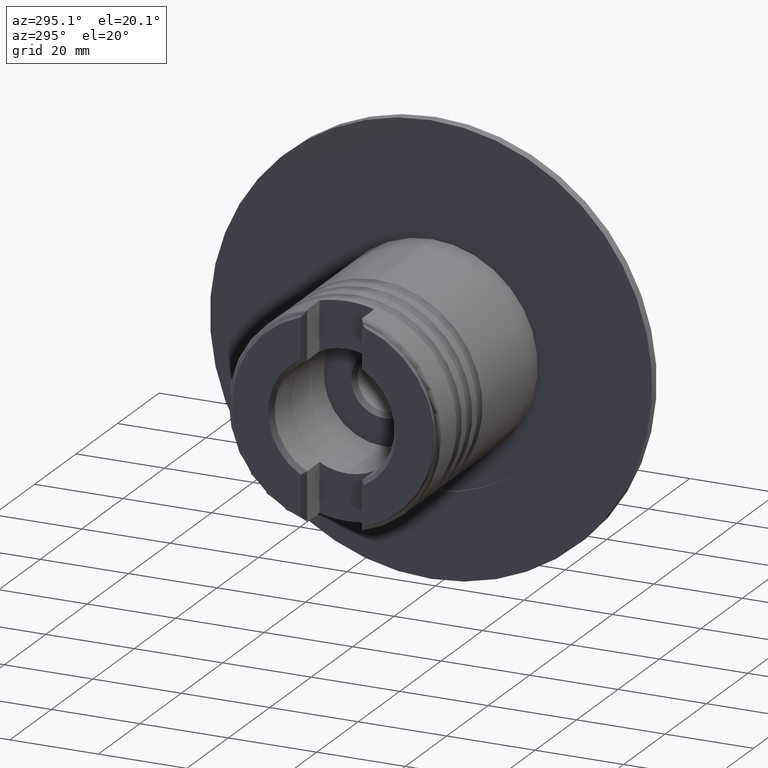
[diagram: clean part render]
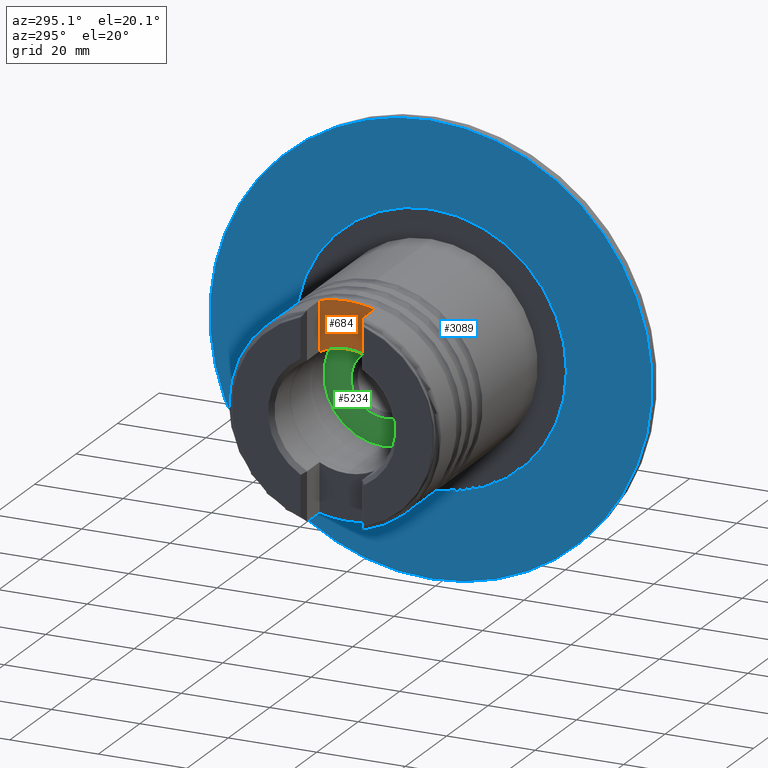
[diagram: same view with three faces highlighted in distinct colors, each labeled with its STEP entity id]
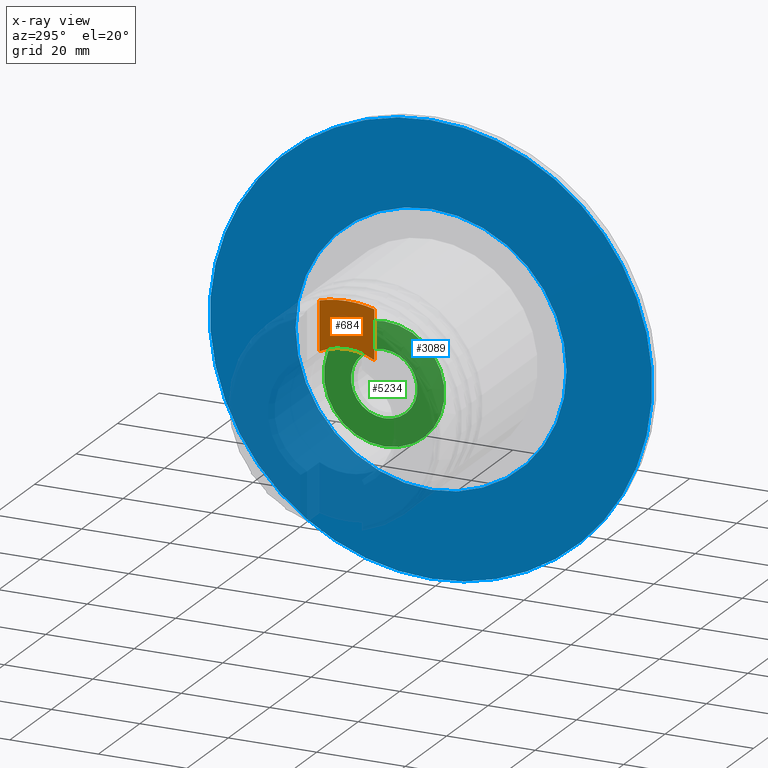
[diagram: x-ray of the same camera — body ghosted, the three highlighted faces saturated]
A machine part, auxiliary view with three faces highlighted in distinct colors.
The next image is the same camera in x-ray (body ghosted, the three faces saturated) — at least one of them is partly hidden behind the body in this view.
Their STEP definitions:

[orange] entity #684 — the highlighted planar face has unit normal (1, 0, 0).
#61 = EDGE_CURVE ( 'NONE', #4363, #4938, #816, .T. ) ;
#162 = FACE_OUTER_BOUND ( 'NONE', #5451, .T. ) ;
#166 = VERTEX_POINT ( 'NONE', #487 ) ;
#243 = ORIENTED_EDGE ( 'NONE', *, *, #2072, .T. ) ;
#487 = CARTESIAN_POINT ( 'NONE',  ( -42.74972663000000495, -6.200000000000005507, 23.18534019590826745 ) ) ;
#574 = AXIS2_PLACEMENT_3D ( 'NONE', #2109, #1243, #3385 ) ;
#640 = DIRECTION ( 'NONE',  ( -1.000000000000000000, 0.0000000000000000000, -0.0000000000000000000 ) ) ;
#684 = ADVANCED_FACE ( 'NONE', ( #162 ), #5165, .F. ) ;
#689 = CARTESIAN_POINT ( 'NONE',  ( -42.74972663000000495, 0.0000000000000000000, 0.0000000000000000000 ) ) ;
#816 = CIRCLE ( 'NONE', #1890, 23.99999999999999289 ) ;
#1243 = DIRECTION ( 'NONE',  ( -1.000000000000000000, 0.0000000000000000000, -0.0000000000000000000 ) ) ;
#1372 = VECTOR ( 'NONE', #3600, 1000.000000000000000 ) ;
#1413 = VECTOR ( 'NONE', #4611, 1000.000000000000000 ) ;
#1440 = CARTESIAN_POINT ( 'NONE',  ( -42.74972663000000495, 0.0000000000000000000, 0.0000000000000000000 ) ) ;
#1442 = EDGE_CURVE ( 'NONE', #3830, #166, #3348, .T. ) ;
#1507 = CIRCLE ( 'NONE', #574, 23.99999999999999289 ) ;
#1523 = CIRCLE ( 'NONE', #1752, 13.57499999999999396 ) ;
#1577 = ORIENTED_EDGE ( 'NONE', *, *, #4366, .F. ) ;
#1752 = AXIS2_PLACEMENT_3D ( 'NONE', #689, #640, #1974 ) ;
#1890 = AXIS2_PLACEMENT_3D ( 'NONE', #1440, #4481, #4010 ) ;
#1974 = DIRECTION ( 'NONE',  ( 0.0000000000000000000, 3.552713678800500535E-15, -1.000000000000000000 ) ) ;
#1987 = DIRECTION ( 'NONE',  ( 0.0000000000000000000, 0.0000000000000000000, -1.000000000000000000 ) ) ;
#2072 = EDGE_CURVE ( 'NONE', #166, #4363, #1507, .T. ) ;
#2109 = CARTESIAN_POINT ( 'NONE',  ( -42.74972663000000495, 0.0000000000000000000, 0.0000000000000000000 ) ) ;
#2132 = AXIS2_PLACEMENT_3D ( 'NONE', #2875, #3259, #4663 ) ;
#2582 = EDGE_CURVE ( 'NONE', #2776, #4197, #3396, .T. ) ;
#2657 = CARTESIAN_POINT ( 'NONE',  ( -42.74972663000000495, -6.200000000000005507, -25.00000000000000000 ) ) ;
#2776 = VERTEX_POINT ( 'NONE', #3945 ) ;
#2875 = CARTESIAN_POINT ( 'NONE',  ( -42.74972663000000495, 0.0000000000000000000, 0.0000000000000000000 ) ) ;
#3212 = EDGE_CURVE ( 'NONE', #4197, #4938, #5053, .T. ) ;
#3259 = DIRECTION ( 'NONE',  ( -1.000000000000000000, 0.0000000000000000000, -0.0000000000000000000 ) ) ;
#3327 = AXIS2_PLACEMENT_3D ( 'NONE', #4683, #3788, #1987 ) ;
#3348 = LINE ( 'NONE', #2657, #1372 ) ;
#3385 = DIRECTION ( 'NONE',  ( 0.0000000000000000000, 5.329070518200750605E-15, -1.000000000000000000 ) ) ;
#3396 = CIRCLE ( 'NONE', #2132, 13.57499999999999396 ) ;
#3505 = ORIENTED_EDGE ( 'NONE', *, *, #2582, .F. ) ;
#3523 = ORIENTED_EDGE ( 'NONE', *, *, #1442, .T. ) ;
#3558 = CARTESIAN_POINT ( 'NONE',  ( -42.74972663000000495, -6.199999999999987743, 12.07644918839970849 ) ) ;
#3600 = DIRECTION ( 'NONE',  ( -0.0000000000000000000, -0.0000000000000000000, 1.000000000000000000 ) ) ;
#3663 = CARTESIAN_POINT ( 'NONE',  ( -42.74972663000000495, 6.199999999999993960, -25.00000000000000000 ) ) ;
#3788 = DIRECTION ( 'NONE',  ( 1.000000000000000000, -0.0000000000000000000, 0.0000000000000000000 ) ) ;
#3830 = VERTEX_POINT ( 'NONE', #3558 ) ;
#3945 = CARTESIAN_POINT ( 'NONE',  ( -42.74972663000000495, 1.662458029842531096E-15, 13.57499999999999396 ) ) ;
#4010 = DIRECTION ( 'NONE',  ( 0.0000000000000000000, 0.0000000000000000000, -1.000000000000000000 ) ) ;
#4197 = VERTEX_POINT ( 'NONE', #4210 ) ;
#4210 = CARTESIAN_POINT ( 'NONE',  ( -42.74972663000000495, 6.199999999999992184, 12.07644918839970494 ) ) ;
#4227 = CARTESIAN_POINT ( 'NONE',  ( -42.74972663000000495, 2.939152317953647106E-15, 23.99999999999999289 ) ) ;
#4363 = VERTEX_POINT ( 'NONE', #4227 ) ;
#4366 = EDGE_CURVE ( 'NONE', #3830, #2776, #1523, .T. ) ;
#4481 = DIRECTION ( 'NONE',  ( -1.000000000000000000, 0.0000000000000000000, -0.0000000000000000000 ) ) ;
#4611 = DIRECTION ( 'NONE',  ( -0.0000000000000000000, -0.0000000000000000000, 1.000000000000000000 ) ) ;
#4663 = DIRECTION ( 'NONE',  ( 0.0000000000000000000, 0.0000000000000000000, -1.000000000000000000 ) ) ;
#4683 = CARTESIAN_POINT ( 'NONE',  ( -42.74972663000000495, -6.200000000000005507, -25.00000000000000000 ) ) ;
#4843 = CARTESIAN_POINT ( 'NONE',  ( -42.74972663000000495, 6.199999999999992184, 23.18534019590827100 ) ) ;
#4938 = VERTEX_POINT ( 'NONE', #4843 ) ;
#4976 = ORIENTED_EDGE ( 'NONE', *, *, #3212, .F. ) ;
#5053 = LINE ( 'NONE', #3663, #1413 ) ;
#5165 = PLANE ( 'NONE',  #3327 ) ;
#5451 = EDGE_LOOP ( 'NONE', ( #243, #5551, #4976, #3505, #1577, #3523 ) ) ;
#5551 = ORIENTED_EDGE ( 'NONE', *, *, #61, .T. ) ;

[blue] entity #3089 — the highlighted planar face has unit normal (1, 0, 0).
#126 = EDGE_CURVE ( 'NONE', #1288, #1400, #4490, .T. ) ;
#198 = FACE_OUTER_BOUND ( 'NONE', #3235, .T. ) ;
#332 = DIRECTION ( 'NONE',  ( 1.000000000000000000, -0.0000000000000000000, -0.0000000000000000000 ) ) ;
#822 = CARTESIAN_POINT ( 'NONE',  ( -1.949726629999988470, 3.748693814761792291E-15, 30.61040797535892821 ) ) ;
#845 = ORIENTED_EDGE ( 'NONE', *, *, #5147, .F. ) ;
#866 = CIRCLE ( 'NONE', #2943, 50.00000000000000000 ) ;
#891 = VERTEX_POINT ( 'NONE', #2191 ) ;
#1186 = VERTEX_POINT ( 'NONE', #2430 ) ;
#1288 = VERTEX_POINT ( 'NONE', #2144 ) ;
#1400 = VERTEX_POINT ( 'NONE', #822 ) ;
#1712 = PLANE ( 'NONE',  #3832 ) ;
#1813 = FACE_BOUND ( 'NONE', #4044, .T. ) ;
#2087 = DIRECTION ( 'NONE',  ( 1.000000000000000000, -0.0000000000000000000, -0.0000000000000000000 ) ) ;
#2144 = CARTESIAN_POINT ( 'NONE',  ( -1.949726629999988470, 0.0000000000000000000, -30.61040797535892821 ) ) ;
#2185 = DIRECTION ( 'NONE',  ( -0.0000000000000000000, 0.0000000000000000000, -1.000000000000000000 ) ) ;
#2191 = CARTESIAN_POINT ( 'NONE',  ( -1.949726629999988470, 0.0000000000000000000, -50.00000000000000000 ) ) ;
#2236 = ORIENTED_EDGE ( 'NONE', *, *, #5590, .F. ) ;
#2430 = CARTESIAN_POINT ( 'NONE',  ( -1.949726629999988470, 6.123233995736766085E-15, 50.00000000000000000 ) ) ;
#2445 = DIRECTION ( 'NONE',  ( 0.0000000000000000000, 0.0000000000000000000, -1.000000000000000000 ) ) ;
#2680 = AXIS2_PLACEMENT_3D ( 'NONE', #3965, #4723, #5631 ) ;
#2943 = AXIS2_PLACEMENT_3D ( 'NONE', #4741, #2087, #2445 ) ;
#2998 = DIRECTION ( 'NONE',  ( 0.0000000000000000000, 0.0000000000000000000, -1.000000000000000000 ) ) ;
#3063 = EDGE_CURVE ( 'NONE', #1400, #1288, #5699, .T. ) ;
#3089 = ADVANCED_FACE ( 'NONE', ( #198, #1813 ), #1712, .F. ) ;
#3167 = CARTESIAN_POINT ( 'NONE',  ( -1.949726629999988470, 0.0000000000000000000, 0.0000000000000000000 ) ) ;
#3235 = EDGE_LOOP ( 'NONE', ( #845, #2236 ) ) ;
#3424 = DIRECTION ( 'NONE',  ( 1.000000000000000000, 0.0000000000000000000, -0.0000000000000000000 ) ) ;
#3503 = AXIS2_PLACEMENT_3D ( 'NONE', #4334, #332, #2998 ) ;
#3555 = DIRECTION ( 'NONE',  ( 1.000000000000000000, -0.0000000000000000000, -0.0000000000000000000 ) ) ;
#3832 = AXIS2_PLACEMENT_3D ( 'NONE', #4842, #3424, #2185 ) ;
#3913 = CIRCLE ( 'NONE', #2680, 50.00000000000000000 ) ;
#3965 = CARTESIAN_POINT ( 'NONE',  ( -1.949726629999988470, 0.0000000000000000000, 0.0000000000000000000 ) ) ;
#4044 = EDGE_LOOP ( 'NONE', ( #5757, #5738 ) ) ;
#4334 = CARTESIAN_POINT ( 'NONE',  ( -1.949726629999988470, 0.0000000000000000000, 0.0000000000000000000 ) ) ;
#4490 = CIRCLE ( 'NONE', #5337, 30.61040797535892821 ) ;
#4505 = DIRECTION ( 'NONE',  ( 0.0000000000000000000, 0.0000000000000000000, -1.000000000000000000 ) ) ;
#4723 = DIRECTION ( 'NONE',  ( 1.000000000000000000, -0.0000000000000000000, -0.0000000000000000000 ) ) ;
#4741 = CARTESIAN_POINT ( 'NONE',  ( -1.949726629999988470, 0.0000000000000000000, 0.0000000000000000000 ) ) ;
#4842 = CARTESIAN_POINT ( 'NONE',  ( -1.949726629999988026, -50.00000000000000000, 0.0000000000000000000 ) ) ;
#5147 = EDGE_CURVE ( 'NONE', #891, #1186, #3913, .T. ) ;
#5337 = AXIS2_PLACEMENT_3D ( 'NONE', #3167, #3555, #4505 ) ;
#5590 = EDGE_CURVE ( 'NONE', #1186, #891, #866, .T. ) ;
#5631 = DIRECTION ( 'NONE',  ( 0.0000000000000000000, 0.0000000000000000000, -1.000000000000000000 ) ) ;
#5699 = CIRCLE ( 'NONE', #3503, 30.61040797535892821 ) ;
#5738 = ORIENTED_EDGE ( 'NONE', *, *, #3063, .T. ) ;
#5757 = ORIENTED_EDGE ( 'NONE', *, *, #126, .T. ) ;

[green] entity #5234 — the highlighted planar face has unit normal (1, 0, 0).
#133 = EDGE_CURVE ( 'NONE', #2284, #316, #1984, .T. ) ;
#316 = VERTEX_POINT ( 'NONE', #4417 ) ;
#350 = EDGE_CURVE ( 'NONE', #2525, #4442, #955, .T. ) ;
#381 = AXIS2_PLACEMENT_3D ( 'NONE', #3547, #4512, #2287 ) ;
#420 = CARTESIAN_POINT ( 'NONE',  ( -24.74972662999999784, 0.0000000000000000000, 0.0000000000000000000 ) ) ;
#502 = DIRECTION ( 'NONE',  ( 1.000000000000000000, 0.0000000000000000000, -0.0000000000000000000 ) ) ;
#593 = FACE_BOUND ( 'NONE', #2125, .T. ) ;
#851 = CIRCLE ( 'NONE', #4563, 13.64999999999999680 ) ;
#955 = CIRCLE ( 'NONE', #4214, 13.64999999999999680 ) ;
#1430 = DIRECTION ( 'NONE',  ( -0.0000000000000000000, 0.0000000000000000000, -1.000000000000000000 ) ) ;
#1765 = PLANE ( 'NONE',  #4580 ) ;
#1970 = FACE_OUTER_BOUND ( 'NONE', #3585, .T. ) ;
#1984 = CIRCLE ( 'NONE', #2957, 7.499999999999997335 ) ;
#1993 = CARTESIAN_POINT ( 'NONE',  ( -24.74972662999999784, 0.0000000000000000000, -13.64999999999999680 ) ) ;
#2125 = EDGE_LOOP ( 'NONE', ( #5745, #5174 ) ) ;
#2160 = DIRECTION ( 'NONE',  ( 1.000000000000000000, -0.0000000000000000000, -0.0000000000000000000 ) ) ;
#2259 = DIRECTION ( 'NONE',  ( 0.0000000000000000000, 0.0000000000000000000, -1.000000000000000000 ) ) ;
#2276 = DIRECTION ( 'NONE',  ( 0.0000000000000000000, 0.0000000000000000000, -1.000000000000000000 ) ) ;
#2284 = VERTEX_POINT ( 'NONE', #4467 ) ;
#2287 = DIRECTION ( 'NONE',  ( 0.0000000000000000000, 0.0000000000000000000, -1.000000000000000000 ) ) ;
#2451 = CIRCLE ( 'NONE', #381, 7.499999999999997335 ) ;
#2525 = VERTEX_POINT ( 'NONE', #1993 ) ;
#2725 = CARTESIAN_POINT ( 'NONE',  ( -24.74972662999999784, 0.0000000000000000000, 0.0000000000000000000 ) ) ;
#2957 = AXIS2_PLACEMENT_3D ( 'NONE', #2725, #4924, #2259 ) ;
#3048 = EDGE_CURVE ( 'NONE', #4442, #2525, #851, .T. ) ;
#3521 = CARTESIAN_POINT ( 'NONE',  ( -24.74972662999999784, 1.671642880836136705E-15, 13.64999999999999680 ) ) ;
#3547 = CARTESIAN_POINT ( 'NONE',  ( -24.74972662999999784, 0.0000000000000000000, 0.0000000000000000000 ) ) ;
#3585 = EDGE_LOOP ( 'NONE', ( #4643, #4727 ) ) ;
#4214 = AXIS2_PLACEMENT_3D ( 'NONE', #420, #2160, #5320 ) ;
#4417 = CARTESIAN_POINT ( 'NONE',  ( -24.74972662999999784, 0.0000000000000000000, 7.499999999999997335 ) ) ;
#4419 = CARTESIAN_POINT ( 'NONE',  ( -24.74972662999999784, 0.0000000000000000000, 0.0000000000000000000 ) ) ;
#4442 = VERTEX_POINT ( 'NONE', #3521 ) ;
#4467 = CARTESIAN_POINT ( 'NONE',  ( -24.74972662999999784, 9.184850993605145972E-16, -7.499999999999997335 ) ) ;
#4512 = DIRECTION ( 'NONE',  ( 1.000000000000000000, -0.0000000000000000000, -0.0000000000000000000 ) ) ;
#4563 = AXIS2_PLACEMENT_3D ( 'NONE', #4419, #4883, #2276 ) ;
#4580 = AXIS2_PLACEMENT_3D ( 'NONE', #5759, #502, #1430 ) ;
#4643 = ORIENTED_EDGE ( 'NONE', *, *, #350, .F. ) ;
#4727 = ORIENTED_EDGE ( 'NONE', *, *, #3048, .F. ) ;
#4883 = DIRECTION ( 'NONE',  ( 1.000000000000000000, -0.0000000000000000000, -0.0000000000000000000 ) ) ;
#4924 = DIRECTION ( 'NONE',  ( 1.000000000000000000, -0.0000000000000000000, -0.0000000000000000000 ) ) ;
#5174 = ORIENTED_EDGE ( 'NONE', *, *, #133, .T. ) ;
#5234 = ADVANCED_FACE ( 'NONE', ( #1970, #593 ), #1765, .F. ) ;
#5291 = EDGE_CURVE ( 'NONE', #316, #2284, #2451, .T. ) ;
#5320 = DIRECTION ( 'NONE',  ( 0.0000000000000000000, 0.0000000000000000000, -1.000000000000000000 ) ) ;
#5745 = ORIENTED_EDGE ( 'NONE', *, *, #5291, .T. ) ;
#5759 = CARTESIAN_POINT ( 'NONE',  ( -24.74972662999999784, 7.499999999999997335, 0.0000000000000000000 ) ) ;